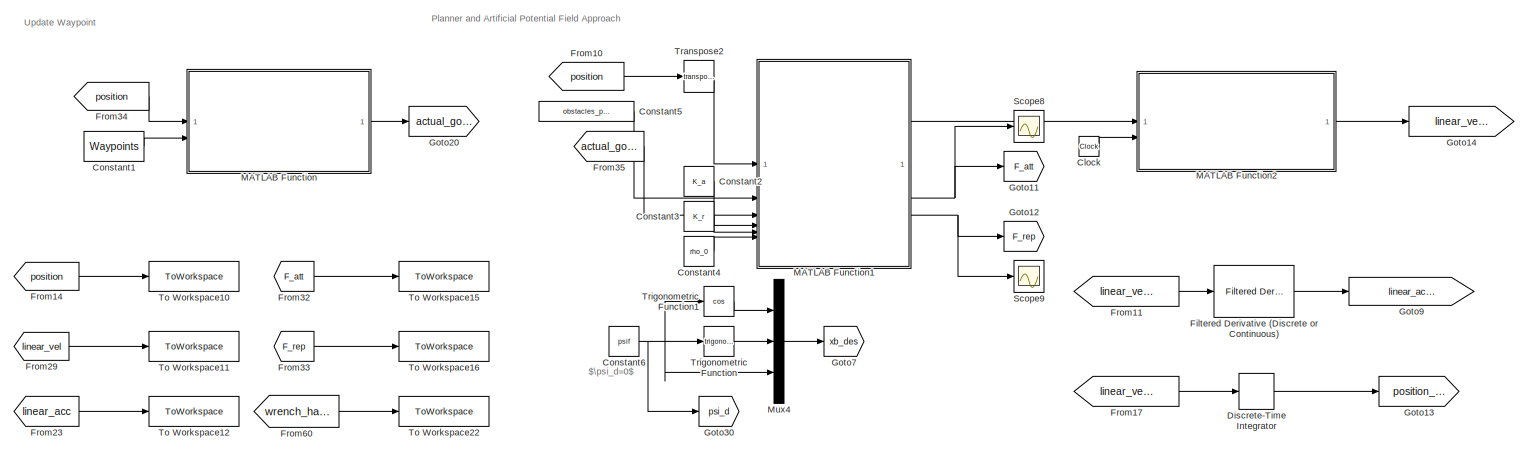
[diagram: root canvas - part 1/5, top right region]
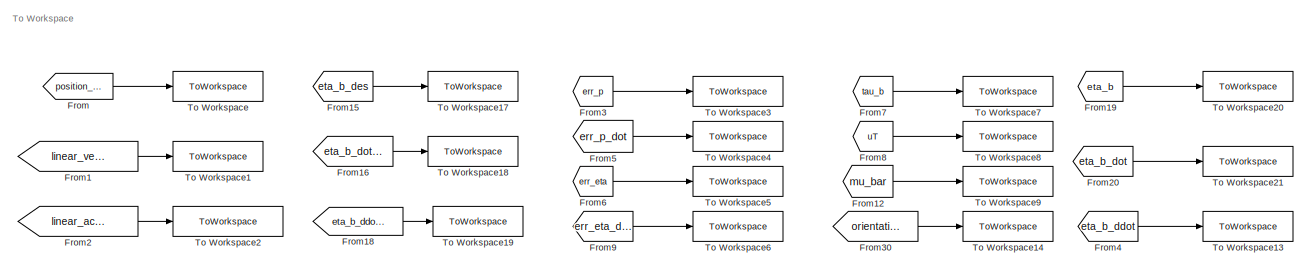
[diagram: root canvas - part 2/5, top left region]
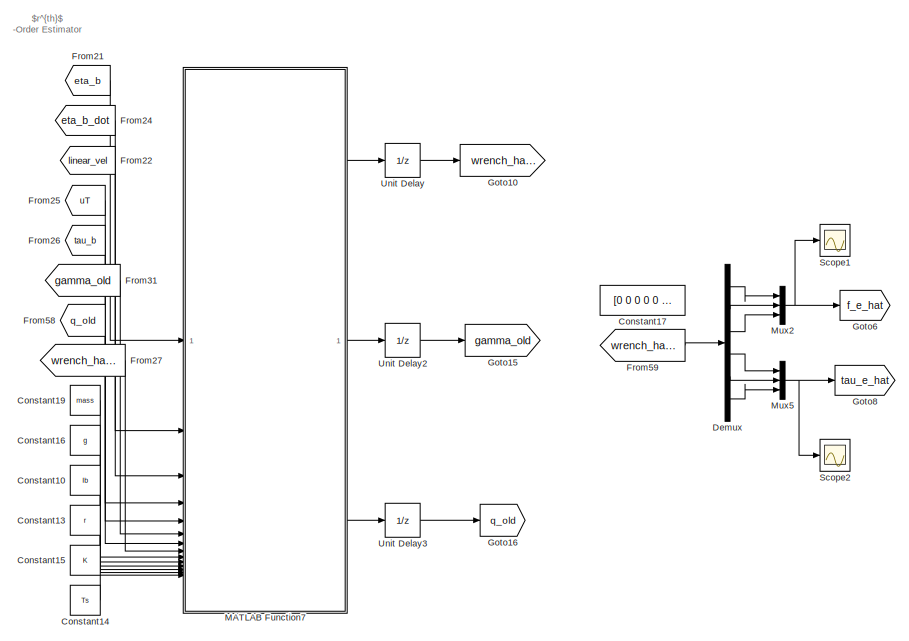
[diagram: root canvas - part 3/5, middle right region]
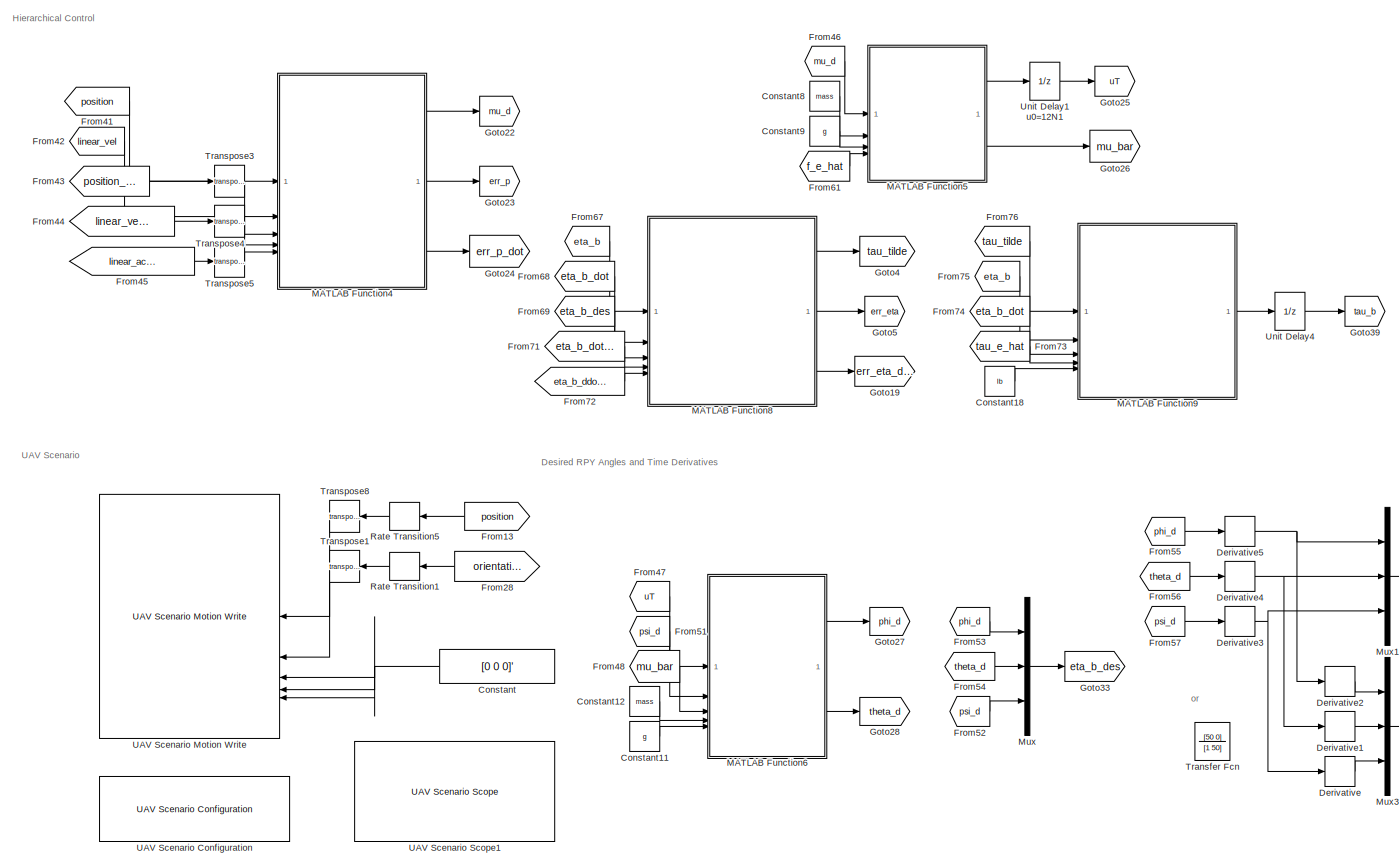
[diagram: root canvas - part 4/5, bottom left region]
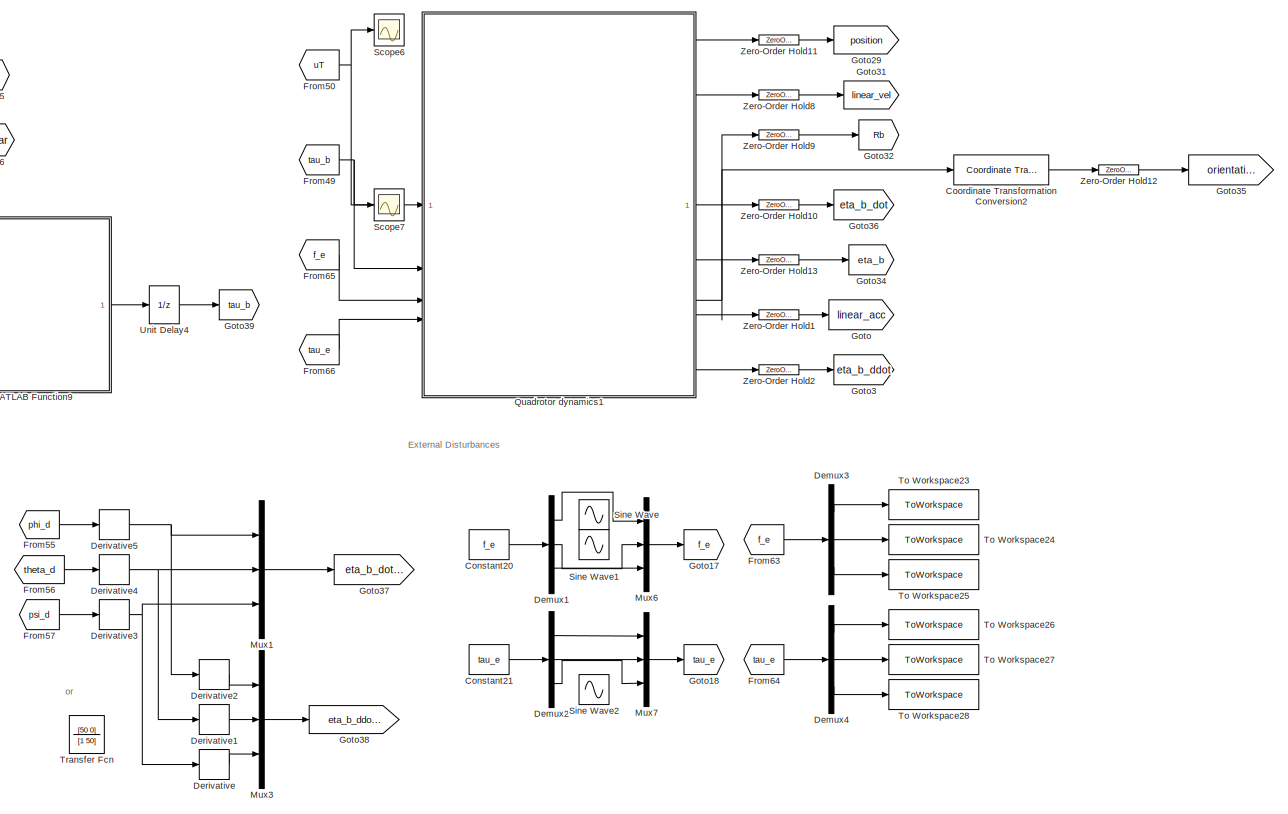
[diagram: root canvas - part 5/5, central region]
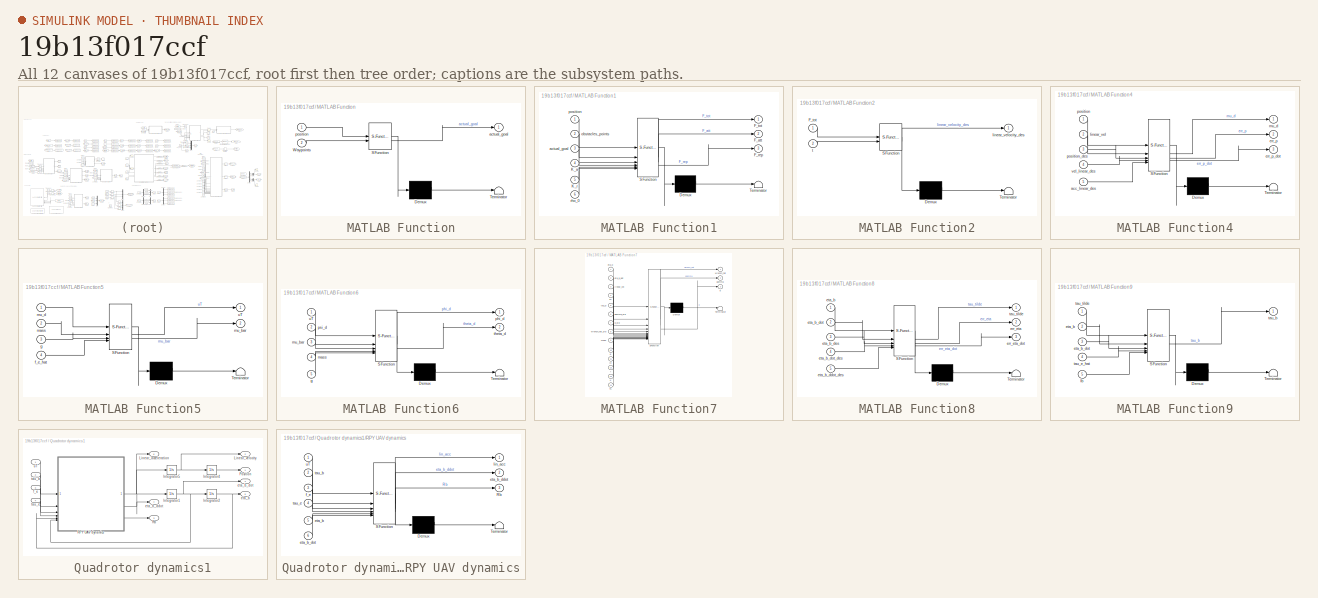
[diagram: thumbnail index - all 12 canvases of the model, root first then tree order]
MODEL slx_19b13f017ccf
KIND model
CONFIG AbsTol = auto
CONFIG EnableMultiTasking = off
CONFIG FixedStep = auto
CONFIG MaxStep = auto
CONFIG MinStep = auto
CONFIG RelTol = 1e-3
CONFIG SampleTimeConstraint = Unconstrained
CONFIG SolverName = VariableStepAuto
CONFIG StartTime = 0.0
CONFIG StopTime = 115
BLOCK [Clock] Clock
BLOCK [Constant] Constant
  NameLocation = top
  Value = [0 0 0]'
BLOCK [Constant] Constant1
  Value = Waypoints
BLOCK [Constant] Constant10
  Value = Ib
BLOCK [Constant] Constant11
  Value = g
BLOCK [Constant] Constant12
  Value = mass
BLOCK [Constant] Constant13
  Value = r
BLOCK [Constant] Constant14
  Value = Ts
BLOCK [Constant] Constant15
  Value = K
BLOCK [Constant] Constant16
  Value = g
BLOCK [Constant] Constant17
  Value = [0 0 0 0 0 0]
BLOCK [Constant] Constant18
  Value = Ib
BLOCK [Constant] Constant19
  Value = mass
BLOCK [Constant] Constant2
  Value = K_a
BLOCK [Constant] Constant20
  Value = f_e
BLOCK [Constant] Constant21
  Value = tau_e
BLOCK [Constant] Constant3
  Value = K_r
BLOCK [Constant] Constant4
  Value = rho_0
BLOCK [Constant] Constant5
  Value = obstacles_points
BLOCK [Constant] Constant6
  Value = psif
BLOCK [Constant] Constant8
  Value = mass
BLOCK [Constant] Constant9
  Value = g
BLOCK [Reference] Coordinate Transformation Conversion2  REF=robotcorelib/Coordinate Transformation Conversion
  SourceBlock = robotcorelib/Coordinate Transformation Conversion
  SourceType = robotics.slcore.internal.block.CoordinateTransformationConversion
BLOCK [Demux] Demux
  Outputs = 6
BLOCK [Demux] Demux1
  Outputs = 3
BLOCK [Demux] Demux2
  Outputs = 3
BLOCK [Demux] Demux3
  Outputs = 3
BLOCK [Demux] Demux4
  Outputs = 3
BLOCK [Derivative] Derivative
BLOCK [Derivative] Derivative1
BLOCK [Derivative] Derivative2
BLOCK [Derivative] Derivative3
BLOCK [Derivative] Derivative4
BLOCK [Derivative] Derivative5
BLOCK [DiscreteIntegrator] Discrete-Time Integrator
  ICPrevOutput = DiscIntNeverNeededParam
  ICPrevScaledInput = DiscIntNeverNeededParam
  InitialCondition = pos_0
  InitialConditionSetting = Auto
  SampleTime = Ts
BLOCK [Reference] Filtered Derivative (Discrete or Continuous)  REF=eeGeneralControl/Filtered Derivative
(Discrete or Continuous)
  LibrarySourceBlock = ee_sl_lib/General Control/Filtered Derivative\n(Discrete or Continuous)
  SourceBlock = eeGeneralControl/Filtered Derivative\n(Discrete or Continuous)
  SourceType = Filtered Derivative (Discrete or Continuous)
BLOCK [From] From
  GotoTag = position_des
BLOCK [From] From1
  GotoTag = linear_velocity_des
BLOCK [From] From10
  GotoTag = position
BLOCK [From] From11
  GotoTag = linear_velocity_des
BLOCK [From] From12
  GotoTag = mu_bar
BLOCK [From] From13
  GotoTag = position
  NameLocation = top
BLOCK [From] From14
  GotoTag = position
BLOCK [From] From15
  GotoTag = eta_b_des
BLOCK [From] From16
  GotoTag = eta_b_dot_des
BLOCK [From] From17
  GotoTag = linear_velocity_des
BLOCK [From] From18
  GotoTag = eta_b_ddot_des
BLOCK [From] From19
  GotoTag = eta_b
BLOCK [From] From2
  GotoTag = linear_acceleration_des
BLOCK [From] From20
  GotoTag = eta_b_dot
BLOCK [From] From21
  GotoTag = eta_b
BLOCK [From] From22
  GotoTag = linear_vel
BLOCK [From] From23
  GotoTag = linear_acc
BLOCK [From] From24
  GotoTag = eta_b_dot
BLOCK [From] From25
  GotoTag = uT
BLOCK [From] From26
  GotoTag = tau_b
BLOCK [From] From27
  GotoTag = wrench_hat_old
BLOCK [From] From28
  GotoTag = orientation_quat
  NameLocation = top
BLOCK [From] From29
  GotoTag = linear_vel
BLOCK [From] From3
  GotoTag = err_p
BLOCK [From] From30
  GotoTag = orientation_quat
BLOCK [From] From31
  GotoTag = gamma_old
BLOCK [From] From32
  GotoTag = F_att
BLOCK [From] From33
  GotoTag = F_rep
BLOCK [From] From34
  GotoTag = position
BLOCK [From] From35
  GotoTag = actual_goals
BLOCK [From] From4
  GotoTag = eta_b_ddot
BLOCK [From] From41
  GotoTag = position
BLOCK [From] From42
  GotoTag = linear_vel
BLOCK [From] From43
  GotoTag = position_des
BLOCK [From] From44
  GotoTag = linear_velocity_des
BLOCK [From] From45
  GotoTag = linear_acceleration_des
BLOCK [From] From46
  GotoTag = mu_d
BLOCK [From] From47
  GotoTag = uT
BLOCK [From] From48
  GotoTag = mu_bar
BLOCK [From] From49
  GotoTag = tau_b
BLOCK [From] From5
  GotoTag = err_p_dot
BLOCK [From] From50
  GotoTag = uT
BLOCK [From] From51
  GotoTag = psi_d
BLOCK [From] From52
  GotoTag = psi_d
BLOCK [From] From53
  GotoTag = phi_d
BLOCK [From] From54
  GotoTag = theta_d
BLOCK [From] From55
  GotoTag = phi_d
BLOCK [From] From56
  GotoTag = theta_d
BLOCK [From] From57
  GotoTag = psi_d
BLOCK [From] From58
  GotoTag = q_old
BLOCK [From] From59
  GotoTag = wrench_hat_old
BLOCK [From] From6
  GotoTag = err_eta
BLOCK [From] From60
  GotoTag = wrench_hat_old
BLOCK [From] From61
  GotoTag = f_e_hat
BLOCK [From] From63
  GotoTag = f_e
BLOCK [From] From64
  GotoTag = tau_e
BLOCK [From] From65
  GotoTag = f_e
BLOCK [From] From66
  GotoTag = tau_e
BLOCK [From] From67
  GotoTag = eta_b
BLOCK [From] From68
  GotoTag = eta_b_dot
BLOCK [From] From69
  GotoTag = eta_b_des
BLOCK [From] From7
  GotoTag = tau_b
BLOCK [From] From71
  GotoTag = eta_b_dot_des
BLOCK [From] From72
  GotoTag = eta_b_ddot_des
BLOCK [From] From73
  GotoTag = tau_e_hat
BLOCK [From] From74
  GotoTag = eta_b_dot
BLOCK [From] From75
  GotoTag = eta_b
BLOCK [From] From76
  GotoTag = tau_tilde
BLOCK [From] From8
  GotoTag = uT
BLOCK [From] From9
  GotoTag = err_eta_dot
BLOCK [Goto] Goto
  GotoTag = linear_acc
BLOCK [Goto] Goto10
  GotoTag = wrench_hat_old
BLOCK [Goto] Goto11
  GotoTag = F_att
BLOCK [Goto] Goto12
  GotoTag = F_rep
BLOCK [Goto] Goto13
  GotoTag = position_des
BLOCK [Goto] Goto14
  GotoTag = linear_velocity_des
BLOCK [Goto] Goto15
  GotoTag = gamma_old
BLOCK [Goto] Goto16
  GotoTag = q_old
BLOCK [Goto] Goto17
  GotoTag = f_e
BLOCK [Goto] Goto18
  GotoTag = tau_e
BLOCK [Goto] Goto19
  GotoTag = err_eta_dot
BLOCK [Goto] Goto20
  GotoTag = actual_goals
BLOCK [Goto] Goto22
  GotoTag = mu_d
BLOCK [Goto] Goto23
  GotoTag = err_p
BLOCK [Goto] Goto24
  GotoTag = err_p_dot
BLOCK [Goto] Goto25
  GotoTag = uT
BLOCK [Goto] Goto26
  GotoTag = mu_bar
BLOCK [Goto] Goto27
  GotoTag = phi_d
BLOCK [Goto] Goto28
  GotoTag = theta_d
BLOCK [Goto] Goto29
  GotoTag = position
BLOCK [Goto] Goto3
  GotoTag = eta_b_ddot
BLOCK [Goto] Goto30
  GotoTag = psi_d
BLOCK [Goto] Goto31
  GotoTag = linear_vel
BLOCK [Goto] Goto32
  GotoTag = Rb
BLOCK [Goto] Goto33
  GotoTag = eta_b_des
BLOCK [Goto] Goto34
  GotoTag = eta_b
BLOCK [Goto] Goto35
  GotoTag = orientation_quat
BLOCK [Goto] Goto36
  GotoTag = eta_b_dot
BLOCK [Goto] Goto37
  GotoTag = eta_b_dot_des
BLOCK [Goto] Goto38
  GotoTag = eta_b_ddot_des
BLOCK [Goto] Goto39
  GotoTag = tau_b
BLOCK [Goto] Goto4
  GotoTag = tau_tilde
BLOCK [Goto] Goto5
  GotoTag = err_eta
BLOCK [Goto] Goto6
  GotoTag = f_e_hat
BLOCK [Goto] Goto7
  Commented = on
  GotoTag = xb_des
BLOCK [Goto] Goto8
  GotoTag = tau_e_hat
BLOCK [Goto] Goto9
  GotoTag = linear_acceleration_des
BLOCK [SubSystem] MATLAB Function
  ErrorFcn = Stateflow.Translate.translate
  PermitHierarchicalResolution = ExplicitOnly
  SFBlockType = MATLAB Function
  TreatAsAtomicUnit = on
BLOCK [Demux] MATLAB Function/ Demux 
  Outputs = 1
BLOCK [S-Function] MATLAB Function/ SFunction 
  EnableBusSupport = off
  FunctionName = sf_sfun
  PortCounts = [2 2]
  SFcnIsStateOwnerBlock = off
  SFunctionDeploymentMode = off
  Tag = Stateflow S-Function 1
BLOCK [Terminator] MATLAB Function/ Terminator 
BLOCK [Inport] MATLAB Function/Waypoints
  Port = 2
BLOCK [Outport] MATLAB Function/actual_goal
BLOCK [Inport] MATLAB Function/position
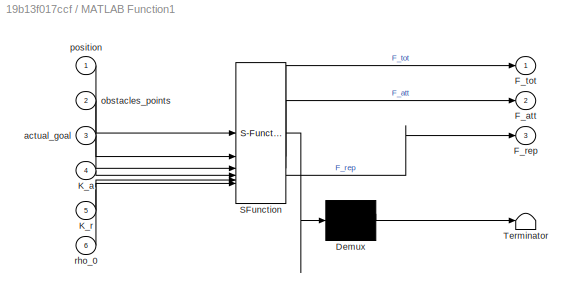
BLOCK [SubSystem] MATLAB Function1
  ErrorFcn = Stateflow.Translate.translate
  PermitHierarchicalResolution = ExplicitOnly
  SFBlockType = MATLAB Function
  TreatAsAtomicUnit = on
BLOCK [Demux] MATLAB Function1/ Demux 
  Outputs = 1
BLOCK [S-Function] MATLAB Function1/ SFunction 
  EnableBusSupport = off
  FunctionName = sf_sfun
  PortCounts = [6 4]
  SFcnIsStateOwnerBlock = off
  SFunctionDeploymentMode = off
  Tag = Stateflow S-Function 6
BLOCK [Terminator] MATLAB Function1/ Terminator 
BLOCK [Outport] MATLAB Function1/F_att
  Port = 2
BLOCK [Outport] MATLAB Function1/F_rep
  Port = 3
BLOCK [Outport] MATLAB Function1/F_tot
BLOCK [Inport] MATLAB Function1/K_a
  Port = 4
BLOCK [Inport] MATLAB Function1/K_r
  Port = 5
BLOCK [Inport] MATLAB Function1/actual_goal
  Port = 3
BLOCK [Inport] MATLAB Function1/obstacles_points
  Port = 2
BLOCK [Inport] MATLAB Function1/position
BLOCK [Inport] MATLAB Function1/rho_0
  Port = 6
BLOCK [SubSystem] MATLAB Function2
  ErrorFcn = Stateflow.Translate.translate
  PermitHierarchicalResolution = ExplicitOnly
  SFBlockType = MATLAB Function
  TreatAsAtomicUnit = on
BLOCK [Demux] MATLAB Function2/ Demux 
  Outputs = 1
BLOCK [S-Function] MATLAB Function2/ SFunction 
  EnableBusSupport = off
  FunctionName = sf_sfun
  PortCounts = [2 2]
  SFcnIsStateOwnerBlock = off
  SFunctionDeploymentMode = off
  Tag = Stateflow S-Function 7
BLOCK [Terminator] MATLAB Function2/ Terminator 
BLOCK [Inport] MATLAB Function2/F_tot
BLOCK [Outport] MATLAB Function2/linear_velocity_des
BLOCK [Inport] MATLAB Function2/t
  Port = 2
BLOCK [SubSystem] MATLAB Function4
  ErrorFcn = Stateflow.Translate.translate
  PermitHierarchicalResolution = ExplicitOnly
  SFBlockType = MATLAB Function
  TreatAsAtomicUnit = on
BLOCK [Demux] MATLAB Function4/ Demux 
  Outputs = 1
BLOCK [S-Function] MATLAB Function4/ SFunction 
  EnableBusSupport = off
  FunctionName = sf_sfun
  PortCounts = [5 4]
  SFcnIsStateOwnerBlock = off
  SFunctionDeploymentMode = off
  Tag = Stateflow S-Function 9
BLOCK [Terminator] MATLAB Function4/ Terminator 
BLOCK [Inport] MATLAB Function4/acc_linear_des
  Port = 5
BLOCK [Outport] MATLAB Function4/err_p
  Port = 2
BLOCK [Outport] MATLAB Function4/err_p_dot
  Port = 3
BLOCK [Inport] MATLAB Function4/linear_vel
  Port = 2
BLOCK [Outport] MATLAB Function4/mu_d
BLOCK [Inport] MATLAB Function4/position
BLOCK [Inport] MATLAB Function4/position_des
  Port = 3
BLOCK [Inport] MATLAB Function4/vel_linear_des
  Port = 4
BLOCK [SubSystem] MATLAB Function5
  ErrorFcn = Stateflow.Translate.translate
  PermitHierarchicalResolution = ExplicitOnly
  SFBlockType = MATLAB Function
  TreatAsAtomicUnit = on
BLOCK [Demux] MATLAB Function5/ Demux 
  Outputs = 1
BLOCK [S-Function] MATLAB Function5/ SFunction 
  EnableBusSupport = off
  FunctionName = sf_sfun
  PortCounts = [4 3]
  SFcnIsStateOwnerBlock = off
  SFunctionDeploymentMode = off
  Tag = Stateflow S-Function 10
BLOCK [Terminator] MATLAB Function5/ Terminator 
BLOCK [Inport] MATLAB Function5/f_e_hat
  Port = 4
BLOCK [Inport] MATLAB Function5/g
  Port = 3
BLOCK [Inport] MATLAB Function5/mass
  Port = 2
BLOCK [Outport] MATLAB Function5/mu_bar
  Port = 2
BLOCK [Inport] MATLAB Function5/mu_d
BLOCK [Outport] MATLAB Function5/uT
BLOCK [SubSystem] MATLAB Function6
  ErrorFcn = Stateflow.Translate.translate
  PermitHierarchicalResolution = ExplicitOnly
  SFBlockType = MATLAB Function
  TreatAsAtomicUnit = on
BLOCK [Demux] MATLAB Function6/ Demux 
  Outputs = 1
BLOCK [S-Function] MATLAB Function6/ SFunction 
  EnableBusSupport = off
  FunctionName = sf_sfun
  PortCounts = [5 3]
  SFcnIsStateOwnerBlock = off
  SFunctionDeploymentMode = off
  Tag = Stateflow S-Function 11
BLOCK [Terminator] MATLAB Function6/ Terminator 
BLOCK [Inport] MATLAB Function6/g
  Port = 5
BLOCK [Inport] MATLAB Function6/mass
  Port = 4
BLOCK [Inport] MATLAB Function6/mu_bar
  Port = 3
BLOCK [Outport] MATLAB Function6/phi_d
BLOCK [Inport] MATLAB Function6/psi_d
  Port = 2
BLOCK [Outport] MATLAB Function6/theta_d
  Port = 2
BLOCK [Inport] MATLAB Function6/uT
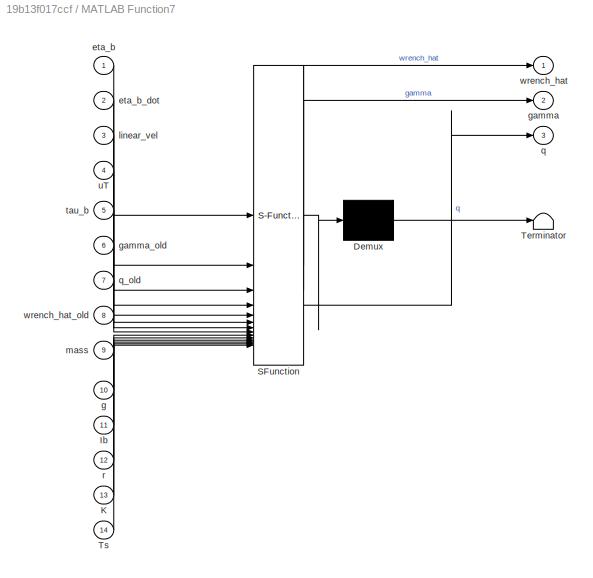
BLOCK [SubSystem] MATLAB Function7
  ErrorFcn = Stateflow.Translate.translate
  PermitHierarchicalResolution = ExplicitOnly
  SFBlockType = MATLAB Function
  TreatAsAtomicUnit = on
BLOCK [Demux] MATLAB Function7/ Demux 
  Outputs = 1
BLOCK [S-Function] MATLAB Function7/ SFunction 
  EnableBusSupport = off
  FunctionName = sf_sfun
  PortCounts = [14 4]
  SFcnIsStateOwnerBlock = off
  SFunctionDeploymentMode = off
  Tag = Stateflow S-Function 2
BLOCK [Terminator] MATLAB Function7/ Terminator 
BLOCK [Inport] MATLAB Function7/Ib
  Port = 11
BLOCK [Inport] MATLAB Function7/K
  Port = 13
BLOCK [Inport] MATLAB Function7/Ts
  Port = 14
BLOCK [Inport] MATLAB Function7/eta_b
BLOCK [Inport] MATLAB Function7/eta_b_dot
  Port = 2
BLOCK [Inport] MATLAB Function7/g
  Port = 10
BLOCK [Outport] MATLAB Function7/gamma
  Port = 2
BLOCK [Inport] MATLAB Function7/gamma_old
  Port = 6
BLOCK [Inport] MATLAB Function7/linear_vel
  Port = 3
BLOCK [Inport] MATLAB Function7/mass
  Port = 9
BLOCK [Outport] MATLAB Function7/q
  Port = 3
BLOCK [Inport] MATLAB Function7/q_old
  Port = 7
BLOCK [Inport] MATLAB Function7/r
  Port = 12
BLOCK [Inport] MATLAB Function7/tau_b
  Port = 5
BLOCK [Inport] MATLAB Function7/uT
  Port = 4
BLOCK [Outport] MATLAB Function7/wrench_hat
BLOCK [Inport] MATLAB Function7/wrench_hat_old
  Port = 8
BLOCK [SubSystem] MATLAB Function8
  ErrorFcn = Stateflow.Translate.translate
  PermitHierarchicalResolution = ExplicitOnly
  SFBlockType = MATLAB Function
  TreatAsAtomicUnit = on
BLOCK [Demux] MATLAB Function8/ Demux 
  Outputs = 1
BLOCK [S-Function] MATLAB Function8/ SFunction 
  EnableBusSupport = off
  FunctionName = sf_sfun
  PortCounts = [5 4]
  SFcnIsStateOwnerBlock = off
  SFunctionDeploymentMode = off
  Tag = Stateflow S-Function 3
BLOCK [Terminator] MATLAB Function8/ Terminator 
BLOCK [Outport] MATLAB Function8/err_eta
  Port = 2
BLOCK [Outport] MATLAB Function8/err_eta_dot
  Port = 3
BLOCK [Inport] MATLAB Function8/eta_b
BLOCK [Inport] MATLAB Function8/eta_b_ddot_des
  Port = 5
BLOCK [Inport] MATLAB Function8/eta_b_des
  Port = 3
BLOCK [Inport] MATLAB Function8/eta_b_dot
  Port = 2
BLOCK [Inport] MATLAB Function8/eta_b_dot_des
  Port = 4
BLOCK [Outport] MATLAB Function8/tau_tilde
BLOCK [SubSystem] MATLAB Function9
  ErrorFcn = Stateflow.Translate.translate
  PermitHierarchicalResolution = ExplicitOnly
  SFBlockType = MATLAB Function
  TreatAsAtomicUnit = on
BLOCK [Demux] MATLAB Function9/ Demux 
  Outputs = 1
BLOCK [S-Function] MATLAB Function9/ SFunction 
  EnableBusSupport = off
  FunctionName = sf_sfun
  PortCounts = [5 2]
  SFcnIsStateOwnerBlock = off
  SFunctionDeploymentMode = off
  Tag = Stateflow S-Function 4
BLOCK [Terminator] MATLAB Function9/ Terminator 
BLOCK [Inport] MATLAB Function9/Ib
  Port = 5
BLOCK [Inport] MATLAB Function9/eta_b
  Port = 2
BLOCK [Inport] MATLAB Function9/eta_b_dot
  Port = 3
BLOCK [Outport] MATLAB Function9/tau_b
BLOCK [Inport] MATLAB Function9/tau_e_hat
  Port = 4
BLOCK [Inport] MATLAB Function9/tau_tilde
BLOCK [Mux] Mux
  DisplayOption = bar
  Inputs = 3
BLOCK [Mux] Mux1
  DisplayOption = bar
  Inputs = 3
BLOCK [Mux] Mux2
  DisplayOption = bar
  Inputs = 3
BLOCK [Mux] Mux3
  DisplayOption = bar
  Inputs = 3
BLOCK [Mux] Mux4
  Commented = on
  DisplayOption = bar
  Inputs = 3
BLOCK [Mux] Mux5
  DisplayOption = bar
  Inputs = 3
BLOCK [Mux] Mux6
  DisplayOption = bar
  Inputs = 3
BLOCK [Mux] Mux7
  DisplayOption = bar
  Inputs = 3
BLOCK [SubSystem] Quadrotor dynamics1
BLOCK [Integrator] Quadrotor dynamics1/Integrator1
  InitialCondition = eta_b_dot_0
BLOCK [Integrator] Quadrotor dynamics1/Integrator2
  InitialCondition = eta_b_0
BLOCK [Integrator] Quadrotor dynamics1/Integrator4
  InitialCondition = pos_0
BLOCK [Integrator] Quadrotor dynamics1/Integrator5
  InitialCondition = lin_vel_0
BLOCK [Outport] Quadrotor dynamics1/Linear_acceleration
  Port = 6
BLOCK [Outport] Quadrotor dynamics1/Linear_velocity
  Port = 2
BLOCK [Outport] Quadrotor dynamics1/Position
BLOCK [SubSystem] Quadrotor dynamics1/RPY UAV dynamics
  ErrorFcn = Stateflow.Translate.translate
  PermitHierarchicalResolution = ExplicitOnly
  SFBlockType = MATLAB Function
  TreatAsAtomicUnit = on
BLOCK [Demux] Quadrotor dynamics1/RPY UAV dynamics/ Demux 
  Outputs = 1
BLOCK [S-Function] Quadrotor dynamics1/RPY UAV dynamics/ SFunction 
  EnableBusSupport = off
  FunctionName = sf_sfun
  Parameters = Ib,mass
  PortCounts = [6 4]
  SFcnIsStateOwnerBlock = off
  SFunctionDeploymentMode = off
  Tag = Stateflow S-Function 13
BLOCK [Terminator] Quadrotor dynamics1/RPY UAV dynamics/ Terminator 
BLOCK [Outport] Quadrotor dynamics1/RPY UAV dynamics/Rb
  Port = 3
BLOCK [Inport] Quadrotor dynamics1/RPY UAV dynamics/eta_b
  Port = 5
BLOCK [Outport] Quadrotor dynamics1/RPY UAV dynamics/eta_b_ddot
  Port = 2
BLOCK [Inport] Quadrotor dynamics1/RPY UAV dynamics/eta_b_dot
  Port = 6
BLOCK [Inport] Quadrotor dynamics1/RPY UAV dynamics/f_e
  Port = 3
BLOCK [Outport] Quadrotor dynamics1/RPY UAV dynamics/lin_acc
BLOCK [Inport] Quadrotor dynamics1/RPY UAV dynamics/tau_b
  Port = 2
BLOCK [Inport] Quadrotor dynamics1/RPY UAV dynamics/tau_e
  Port = 4
BLOCK [Inport] Quadrotor dynamics1/RPY UAV dynamics/uT
BLOCK [Outport] Quadrotor dynamics1/Rb
  Port = 3
BLOCK [Outport] Quadrotor dynamics1/eta_b
  Port = 5
BLOCK [Outport] Quadrotor dynamics1/eta_b_ddot
  Port = 7
BLOCK [Outport] Quadrotor dynamics1/eta_b_dot
  Port = 4
BLOCK [Inport] Quadrotor dynamics1/f_e
  Port = 3
BLOCK [Inport] Quadrotor dynamics1/tau_b
  Port = 2
BLOCK [Inport] Quadrotor dynamics1/tau_e
  Port = 4
BLOCK [Inport] Quadrotor dynamics1/uT
BLOCK [RateTransition] Rate Transition1
  OutPortSampleTime = Ts
BLOCK [RateTransition] Rate Transition5
  OutPortSampleTime = Ts
BLOCK [Scope] Scope1
  ActiveDisplayYMaximum = 1
  ActiveDisplayYMinimum = -1
  Floating = off
  GraphicalSettings = {"Style":{"BackgroundColor":[0.12941176470588237,0.12941176470588237,0.12941176470588237],"AxesColor":[0.07058823529411765,0.07058823529411765,0.07058823529411765],"LabelsColor":[0.8509803921568627,0.8509803921568627,0.8509803921568627],"PreserveColors":false,"Visible":[true,true,true],"LineStyle":["-","-","-"],"LineWidth":[1.5,1.5,1.5],"BarWidth":[0.9,0.9,0.9],"LineColor":["auto","auto","auto"],"...<+2095ch>
  MultipleDisplayCache = [{"MaxYLimMag":1,"MaxYLimReal":1,"MinYLimMag":0,"MinYLimReal":-1,"PlotAsMagnitudePhase":false,"ShowGrid":true,"ShowLegend":false,"Title":"%<SignalLabel>","YLabel":""}]
  NumInputPorts = 1
  ScopeFrameLocation = window
  WasSavedAsWebScope = on
  WindowPosition = [0.000000,36.000000,1536.000000,793.000000,]
BLOCK [Scope] Scope2
  ActiveDisplayYMaximum = 1.6732320406118144
  ActiveDisplayYMinimum = -2.2549630226203039
  DataLoggingVariableName = ScopeData1
  Floating = off
  GraphicalSettings = {"Style":{"BackgroundColor":[0.12941176470588237,0.12941176470588237,0.12941176470588237],"AxesColor":[0.07058823529411765,0.07058823529411765,0.07058823529411765],"LabelsColor":[0.8509803921568627,0.8509803921568627,0.8509803921568627],"PreserveColors":false,"Visible":[true,true,true],"LineStyle":["-","-","-"],"LineWidth":[1.5,1.5,1.5],"BarWidth":[0.9,0.9,0.9],"LineColor":["auto","auto","auto"],"...<+2194ch>
  MultipleDisplayCache = [{"MaxYLimMag":2.2549630226203039,"MaxYLimReal":1.6732320406118144,"MinYLimMag":0,"MinYLimReal":-2.2549630226203039,"PlotAsMagnitudePhase":false,"ShowGrid":true,"ShowLegend":false,"Title":"%<SignalLabel>","YLabel":""}]
  NumInputPorts = 1
  ScopeFrameLocation = window
  WasSavedAsWebScope = on
  WindowPosition = [1921.000000,49.000000,1920.000000,1009.000000,]
BLOCK [Scope] Scope6
  ActiveDisplayYMaximum = 12.03695
  ActiveDisplayYMinimum = 11.66748
  DataLoggingVariableName = ScopeData2
  Floating = off
  GraphicalSettings = {"GraphicalSettings":{"LegacySettings":true,"Style":{"Style":{"AxesColor":"[0 0 0]","ChannelNames":[""],"ColorOrder":"[1 1 0.0666666666666667;0.0745098039215686 0.623529411764706 1;1 0.411764705882353 0.16078431372549;0.392156862745098 0.831372549019608 0.0745098039215686;0.717647058823529 0.274509803921569 1;0.0588235294117647 1 1;1 0.0745098039215686 0.650980392156863]","CurrentConfiguration":"e...<+375ch>
  MultipleDisplayCache = [{"MaxYLimMag":12.03695,"MaxYLimReal":12.03695,"MinYLimMag":11.66748,"MinYLimReal":11.66748,"PlotAsMagnitudePhase":false,"ShowGrid":true,"ShowLegend":false,"Title":"%<SignalLabel>","YLabel":""}]
  NumInputPorts = 1
  WasSavedAsWebScope = on
BLOCK [Scope] Scope7
  ActiveDisplayYMaximum = 0.02035
  ActiveDisplayYMinimum = -0.02035
  DataLoggingVariableName = ScopeData7
  Floating = off
  GraphicalSettings = {"GraphicalSettings":{"LegacySettings":true,"Style":{"AxesScalingProperties":{"ScaleAxesLimitsAtStop":false},"Style":{"AxesColor":"[0 0 0]","ChannelNames":[""],"ColorOrder":"[1 1 0.0666666666666667;0.0745098039215686 0.623529411764706 1;1 0.411764705882353 0.16078431372549;0.392156862745098 0.831372549019608 0.0745098039215686;0.717647058823529 0.274509803921569 1;0.0588235294117647 1 1;1 0.074509...<+463ch>
  MultipleDisplayCache = [{"MaxYLimMag":0.02035,"MaxYLimReal":0.02035,"MinYLimMag":0,"MinYLimReal":-0.02035,"PlotAsMagnitudePhase":false,"ShowGrid":true,"ShowLegend":false,"Title":"%<SignalLabel>","YLabel":""}]
  NumInputPorts = 1
  WasSavedAsWebScope = on
BLOCK [Scope] Scope8
  ActiveDisplayYMaximum = 10.433654100091561
  ActiveDisplayYMinimum = -10.489441161556352
  DataLoggingVariableName = ScopeData8
  Floating = off
  GraphicalSettings = {"Style":{"BackgroundColor":[0.12941176470588237,0.12941176470588237,0.12941176470588237],"AxesColor":[0.07058823529411765,0.07058823529411765,0.07058823529411765],"LabelsColor":[0.8509803921568627,0.8509803921568627,0.8509803921568627],"PreserveColors":false,"Visible":[true,true,true],"LineStyle":["-","-","-"],"LineWidth":[1.5,1.5,1.5],"BarWidth":[0.9,0.9,0.9],"LineColor":["auto","auto","auto"],"...<+2224ch>
  MultipleDisplayCache = [{"MaxYLimMag":10,"MaxYLimReal":10.433654100091561,"MinYLimMag":0,"MinYLimReal":-10.489441161556352,"PlotAsMagnitudePhase":false,"ShowGrid":true,"ShowLegend":false,"Title":"%<SignalLabel>","YLabel":""}]
  NumInputPorts = 1
  ScopeFrameLocation = window
  WasSavedAsWebScope = on
  WindowPosition = [2185.000000,199.000000,558.000000,419.000000,]
BLOCK [Scope] Scope9
  ActiveDisplayYMaximum = 1
  ActiveDisplayYMinimum = -1
  DataLoggingVariableName = ScopeData9
  Floating = off
  GraphicalSettings = {"Style":{"BackgroundColor":[0.12941176470588237,0.12941176470588237,0.12941176470588237],"AxesColor":[0.07058823529411765,0.07058823529411765,0.07058823529411765],"LabelsColor":[0.8509803921568627,0.8509803921568627,0.8509803921568627],"PreserveColors":false,"Visible":[true,true,true],"LineStyle":["-","-","-"],"LineWidth":[1.5,1.5,1.5],"BarWidth":[0.9,0.9,0.9],"LineColor":["auto","auto","auto"],"...<+2260ch>
  MultipleDisplayCache = [{"MaxYLimMag":1,"MaxYLimReal":1,"MinYLimMag":0,"MinYLimReal":-1,"PlotAsMagnitudePhase":false,"ShowGrid":true,"ShowLegend":false,"Title":"%<SignalLabel>","YLabel":""}]
  NumInputPorts = 1
  ScopeFrameLocation = window
  WasSavedAsWebScope = on
  WindowPosition = [1921.000000,49.000000,1920.000000,1009.000000,]
BLOCK [Sin] Sine Wave
  Amplitude = Dxy
  Frequency = 0.5
  SampleTime = Ts
BLOCK [Sin] Sine Wave1
  Amplitude = Dxy
  Frequency = 0.2
  Phase = pi
  SampleTime = Ts
BLOCK [Sin] Sine Wave2
  Amplitude = Dyaw
  Frequency = 0.1
  SampleTime = Ts
BLOCK [ToWorkspace] To Workspace
  FixptAsFi = on
  MaxDataPoints = inf
  SampleTime = -1
  SaveFormat = Timeseries
  VariableName = position_des
BLOCK [ToWorkspace] To Workspace1
  FixptAsFi = on
  MaxDataPoints = inf
  SampleTime = -1
  SaveFormat = Timeseries
  VariableName = linear_velocity_des
BLOCK [ToWorkspace] To Workspace10
  FixptAsFi = on
  MaxDataPoints = inf
  SampleTime = -1
  SaveFormat = Timeseries
  VariableName = position
BLOCK [ToWorkspace] To Workspace11
  FixptAsFi = on
  MaxDataPoints = inf
  SampleTime = -1
  SaveFormat = Timeseries
  VariableName = linear_vel
BLOCK [ToWorkspace] To Workspace12
  FixptAsFi = on
  MaxDataPoints = inf
  SampleTime = -1
  SaveFormat = Timeseries
  VariableName = linear_acc
BLOCK [ToWorkspace] To Workspace13
  FixptAsFi = on
  MaxDataPoints = inf
  SampleTime = -1
  SaveFormat = Timeseries
  VariableName = eta_b_ddot
BLOCK [ToWorkspace] To Workspace14
  FixptAsFi = on
  MaxDataPoints = inf
  SampleTime = -1
  SaveFormat = Timeseries
  VariableName = orientation_quat
BLOCK [ToWorkspace] To Workspace15
  FixptAsFi = on
  MaxDataPoints = inf
  SampleTime = -1
  SaveFormat = Timeseries
  VariableName = F_att
BLOCK [ToWorkspace] To Workspace16
  FixptAsFi = on
  MaxDataPoints = inf
  SampleTime = -1
  SaveFormat = Timeseries
  VariableName = F_rep
BLOCK [ToWorkspace] To Workspace17
  FixptAsFi = on
  MaxDataPoints = inf
  SampleTime = -1
  SaveFormat = Timeseries
  VariableName = eta_b_des
BLOCK [ToWorkspace] To Workspace18
  FixptAsFi = on
  MaxDataPoints = inf
  SampleTime = -1
  SaveFormat = Timeseries
  VariableName = eta_b_dot_des
BLOCK [ToWorkspace] To Workspace19
  FixptAsFi = on
  MaxDataPoints = inf
  SampleTime = -1
  SaveFormat = Timeseries
  VariableName = eta_b_ddot_des
BLOCK [ToWorkspace] To Workspace2
  FixptAsFi = on
  MaxDataPoints = inf
  SampleTime = -1
  SaveFormat = Timeseries
  VariableName = linear_acceleration_des
BLOCK [ToWorkspace] To Workspace20
  FixptAsFi = on
  MaxDataPoints = inf
  SampleTime = -1
  SaveFormat = Timeseries
  VariableName = eta_b
BLOCK [ToWorkspace] To Workspace21
  FixptAsFi = on
  MaxDataPoints = inf
  SampleTime = -1
  SaveFormat = Timeseries
  VariableName = eta_b_dot
BLOCK [ToWorkspace] To Workspace22
  FixptAsFi = on
  MaxDataPoints = inf
  SampleTime = -1
  SaveFormat = Timeseries
  VariableName = wrench_hat
BLOCK [ToWorkspace] To Workspace23
  FixptAsFi = on
  MaxDataPoints = inf
  SampleTime = -1
  SaveFormat = Timeseries
  VariableName = Dx
BLOCK [ToWorkspace] To Workspace24
  FixptAsFi = on
  MaxDataPoints = inf
  SampleTime = -1
  SaveFormat = Timeseries
  VariableName = Dy
BLOCK [ToWorkspace] To Workspace25
  FixptAsFi = on
  MaxDataPoints = inf
  SampleTime = -1
  SaveFormat = Timeseries
  VariableName = Dz
BLOCK [ToWorkspace] To Workspace26
  FixptAsFi = on
  MaxDataPoints = inf
  SampleTime = -1
  SaveFormat = Timeseries
  VariableName = Droll
BLOCK [ToWorkspace] To Workspace27
  FixptAsFi = on
  MaxDataPoints = inf
  SampleTime = -1
  SaveFormat = Timeseries
  VariableName = Dpitch
BLOCK [ToWorkspace] To Workspace28
  FixptAsFi = on
  MaxDataPoints = inf
  SampleTime = -1
  SaveFormat = Timeseries
  VariableName = Dyaw
BLOCK [ToWorkspace] To Workspace3
  FixptAsFi = on
  MaxDataPoints = inf
  SampleTime = -1
  SaveFormat = Timeseries
  VariableName = err_p
BLOCK [ToWorkspace] To Workspace4
  FixptAsFi = on
  MaxDataPoints = inf
  SampleTime = -1
  SaveFormat = Timeseries
  VariableName = err_p_dot
BLOCK [ToWorkspace] To Workspace5
  FixptAsFi = on
  MaxDataPoints = inf
  SampleTime = -1
  SaveFormat = Timeseries
  VariableName = err_eta
BLOCK [ToWorkspace] To Workspace6
  FixptAsFi = on
  MaxDataPoints = inf
  SampleTime = -1
  SaveFormat = Timeseries
  VariableName = err_eta_dot
BLOCK [ToWorkspace] To Workspace7
  FixptAsFi = on
  MaxDataPoints = inf
  SampleTime = -1
  SaveFormat = Timeseries
  VariableName = tau_b
BLOCK [ToWorkspace] To Workspace8
  FixptAsFi = on
  MaxDataPoints = inf
  SampleTime = -1
  SaveFormat = Timeseries
  VariableName = uT
BLOCK [ToWorkspace] To Workspace9
  FixptAsFi = on
  MaxDataPoints = inf
  SampleTime = -1
  SaveFormat = Timeseries
  VariableName = mu_bar
BLOCK [TransferFcn] Transfer Fcn
  Commented = on
  Denominator = [1 50]
  Numerator = [50 0]
BLOCK [Math] Transpose1
  NameLocation = top
  Operator = transpose
BLOCK [Math] Transpose2
  Operator = transpose
BLOCK [Math] Transpose3
  Operator = transpose
BLOCK [Math] Transpose4
  Operator = transpose
BLOCK [Math] Transpose5
  Operator = transpose
BLOCK [Math] Transpose8
  NameLocation = top
  Operator = transpose
BLOCK [Trigonometry] Trigonometric Function
  Commented = on
BLOCK [Trigonometry] Trigonometric Function1
  Commented = on
  Operator = cos
BLOCK [Reference] UAV Scenario Configuration  REF=uavsimlib/UAV Scenario Configuration
  Priority = -1
  SourceBlock = uavsimlib/UAV Scenario Configuration
  SourceType = UAV Scenario Configuration
BLOCK [Reference] UAV Scenario Motion Write  REF=uavsimlib/UAV Scenario Motion Write
  Priority = 0
  SourceBlock = uavsimlib/UAV Scenario Motion Write
  SourceType = UAV Scenario Motion Write
BLOCK [Reference] UAV Scenario Scope1  REF=uavsimlib/UAV Scenario Scope
  Priority = 1
  SourceBlock = uavsimlib/UAV Scenario Scope
  SourceType = UAV Scenario Scope
BLOCK [UnitDelay] Unit Delay
  HasFrameUpgradeWarning = on
  InitialCondition = zeros(6,1)
  SampleTime = Ts
BLOCK [UnitDelay] Unit Delay1 u0=12N1
  InitialCondition = 12
  SampleTime = Ts
BLOCK [UnitDelay] Unit Delay2
  HasFrameUpgradeWarning = on
  InitialCondition = zeros(6,r)
  SampleTime = Ts
BLOCK [UnitDelay] Unit Delay3
  HasFrameUpgradeWarning = on
  InitialCondition = zeros(6,1)
  SampleTime = Ts
BLOCK [UnitDelay] Unit Delay4
  InitialCondition = [0 0 0]'
  SampleTime = Ts
BLOCK [ZeroOrderHold] Zero-Order Hold1
  SampleTime = Ts
BLOCK [ZeroOrderHold] Zero-Order Hold10
  SampleTime = Ts
BLOCK [ZeroOrderHold] Zero-Order Hold11
  SampleTime = Ts
BLOCK [ZeroOrderHold] Zero-Order Hold12
  SampleTime = Ts
BLOCK [ZeroOrderHold] Zero-Order Hold13
  SampleTime = Ts
BLOCK [ZeroOrderHold] Zero-Order Hold2
  SampleTime = Ts
BLOCK [ZeroOrderHold] Zero-Order Hold8
  SampleTime = Ts
BLOCK [ZeroOrderHold] Zero-Order Hold9
  SampleTime = Ts
ANNOTATION (root): External Disturbances
ANNOTATION (root): Desired RPY Angles and Time Derivatives
ANNOTATION (root): Hierarchical Control
ANNOTATION (root): Planner and Artificial Potential Field Approach
ANNOTATION (root): To Workspace
ANNOTATION (root): UAV Scenario
ANNOTATION (root): Update Waypoint
ANNOTATION (root): $\psi_d=0$
ANNOTATION (root): $r^{th}$ -Order Estimator
ANNOTATION (root): or
LINE Clock:1 -> MATLAB Function2:2
LINE Constant10:1 -> MATLAB Function7:11
LINE Constant11:1 -> MATLAB Function6:5
LINE Constant12:1 -> MATLAB Function6:4
LINE Constant13:1 -> MATLAB Function7:12
LINE Constant14:1 -> MATLAB Function7:14
LINE Constant15:1 -> MATLAB Function7:13
LINE Constant16:1 -> MATLAB Function7:10
LINE Constant18:1 -> MATLAB Function9:5
LINE Constant19:1 -> MATLAB Function7:9
LINE Constant1:1 -> MATLAB Function:2
LINE Constant20:1 -> Demux1:1
LINE Constant21:1 -> Demux2:1
LINE Constant2:1 -> MATLAB Function1:4
LINE Constant3:1 -> MATLAB Function1:5
LINE Constant4:1 -> MATLAB Function1:6
LINE Constant5:1 -> MATLAB Function1:2
NET Constant6:1 -> Goto30:1, Mux4:3, Trigonometric Function1:1, Trigonometric Function:1
LINE Constant8:1 -> MATLAB Function5:2
LINE Constant9:1 -> MATLAB Function5:3
NET Constant:1 -> UAV Scenario Motion Write:3, UAV Scenario Motion Write:4, UAV Scenario Motion Write:5
LINE Coordinate Transformation Conversion2:1 -> Zero-Order Hold12:1
LINE Demux1:1 -> Mux6:1
LINE Demux1:2 -> Mux6:2
LINE Demux1:3 -> Mux6:3
LINE Demux2:1 -> Mux7:1
LINE Demux2:2 -> Mux7:2
LINE Demux2:3 -> Mux7:3
LINE Demux3:1 -> To Workspace23:1
LINE Demux3:2 -> To Workspace24:1
LINE Demux3:3 -> To Workspace25:1
LINE Demux4:1 -> To Workspace26:1
LINE Demux4:2 -> To Workspace27:1
LINE Demux4:3 -> To Workspace28:1
LINE Demux:1 -> Mux2:1
LINE Demux:2 -> Mux2:2
LINE Demux:3 -> Mux2:3
LINE Demux:4 -> Mux5:1
LINE Demux:5 -> Mux5:2
LINE Demux:6 -> Mux5:3
LINE Derivative1:1 -> Mux3:2
LINE Derivative2:1 -> Mux3:1
NET Derivative3:1 -> Derivative:1, Mux1:3
NET Derivative4:1 -> Derivative1:1, Mux1:2
NET Derivative5:1 -> Derivative2:1, Mux1:1
LINE Derivative:1 -> Mux3:3
LINE Discrete-Time Integrator:1 -> Goto13:1
LINE Filtered Derivative (Discrete or Continuous):1 -> Goto9:1
LINE From10:1 -> Transpose2:1
LINE From11:1 -> Filtered Derivative (Discrete or Continuous):1
LINE From12:1 -> To Workspace9:1
LINE From13:1 -> Rate Transition5:1
LINE From14:1 -> To Workspace10:1
LINE From15:1 -> To Workspace17:1
LINE From16:1 -> To Workspace18:1
LINE From17:1 -> Discrete-Time Integrator:1
LINE From18:1 -> To Workspace19:1
LINE From19:1 -> To Workspace20:1
LINE From1:1 -> To Workspace1:1
LINE From20:1 -> To Workspace21:1
LINE From21:1 -> MATLAB Function7:1
LINE From22:1 -> MATLAB Function7:3
LINE From23:1 -> To Workspace12:1
LINE From24:1 -> MATLAB Function7:2
LINE From25:1 -> MATLAB Function7:4
LINE From26:1 -> MATLAB Function7:5
LINE From27:1 -> MATLAB Function7:8
LINE From28:1 -> Rate Transition1:1
LINE From29:1 -> To Workspace11:1
LINE From2:1 -> To Workspace2:1
LINE From30:1 -> To Workspace14:1
LINE From31:1 -> MATLAB Function7:6
LINE From32:1 -> To Workspace15:1
LINE From33:1 -> To Workspace16:1
LINE From34:1 -> MATLAB Function:1
LINE From35:1 -> MATLAB Function1:3
LINE From3:1 -> To Workspace3:1
LINE From41:1 -> MATLAB Function4:1
LINE From42:1 -> MATLAB Function4:2
LINE From43:1 -> Transpose3:1
LINE From44:1 -> Transpose4:1
LINE From45:1 -> Transpose5:1
LINE From46:1 -> MATLAB Function5:1
LINE From47:1 -> MATLAB Function6:1
LINE From48:1 -> MATLAB Function6:3
NET From49:1 -> Quadrotor dynamics1:2, Scope7:1
LINE From4:1 -> To Workspace13:1
NET From50:1 -> Quadrotor dynamics1:1, Scope6:1
LINE From51:1 -> MATLAB Function6:2
LINE From52:1 -> Mux:3
LINE From53:1 -> Mux:1
LINE From54:1 -> Mux:2
LINE From55:1 -> Derivative5:1
LINE From56:1 -> Derivative4:1
LINE From57:1 -> Derivative3:1
LINE From58:1 -> MATLAB Function7:7
LINE From59:1 -> Demux:1
LINE From5:1 -> To Workspace4:1
LINE From60:1 -> To Workspace22:1
LINE From61:1 -> MATLAB Function5:4
LINE From63:1 -> Demux3:1
LINE From64:1 -> Demux4:1
LINE From65:1 -> Quadrotor dynamics1:3
LINE From66:1 -> Quadrotor dynamics1:4
LINE From67:1 -> MATLAB Function8:1
LINE From68:1 -> MATLAB Function8:2
LINE From69:1 -> MATLAB Function8:3
LINE From6:1 -> To Workspace5:1
LINE From71:1 -> MATLAB Function8:4
LINE From72:1 -> MATLAB Function8:5
LINE From73:1 -> MATLAB Function9:4
LINE From74:1 -> MATLAB Function9:3
LINE From75:1 -> MATLAB Function9:2
LINE From76:1 -> MATLAB Function9:1
LINE From7:1 -> To Workspace7:1
LINE From8:1 -> To Workspace8:1
LINE From9:1 -> To Workspace6:1
LINE From:1 -> To Workspace:1
LINE MATLAB Function1:1 -> MATLAB Function2:1
NET MATLAB Function1:2 -> Goto11:1, Scope8:1
NET MATLAB Function1:3 -> Goto12:1, Scope9:1
LINE MATLAB Function2:1 -> Goto14:1
LINE MATLAB Function4:1 -> Goto22:1
LINE MATLAB Function4:2 -> Goto23:1
LINE MATLAB Function4:3 -> Goto24:1
LINE MATLAB Function5:1 -> Unit Delay1 u0=12N1:1
LINE MATLAB Function5:2 -> Goto26:1
LINE MATLAB Function6:1 -> Goto27:1
LINE MATLAB Function6:2 -> Goto28:1
LINE MATLAB Function7:1 -> Unit Delay:1
LINE MATLAB Function7:2 -> Unit Delay2:1
LINE MATLAB Function7:3 -> Unit Delay3:1
LINE MATLAB Function8:1 -> Goto4:1
LINE MATLAB Function8:2 -> Goto5:1
LINE MATLAB Function8:3 -> Goto19:1
LINE MATLAB Function9:1 -> Unit Delay4:1
LINE MATLAB Function:1 -> Goto20:1
LINE Mux1:1 -> Goto37:1
NET Mux2:1 -> Goto6:1, Scope1:1
LINE Mux3:1 -> Goto38:1
LINE Mux4:1 -> Goto7:1
NET Mux5:1 -> Goto8:1, Scope2:1
LINE Mux6:1 -> Goto17:1
LINE Mux7:1 -> Goto18:1
LINE Mux:1 -> Goto33:1
NET Quadrotor dynamics1/Integrator1:1 -> Quadrotor dynamics1/Integrator2:1, Quadrotor dynamics1/RPY UAV dynamics:6, Quadrotor dynamics1/eta_b_dot:1
NET Quadrotor dynamics1/Integrator2:1 -> Quadrotor dynamics1/RPY UAV dynamics:5, Quadrotor dynamics1/eta_b:1
LINE Quadrotor dynamics1/Integrator4:1 -> Quadrotor dynamics1/Position:1
NET Quadrotor dynamics1/Integrator5:1 -> Quadrotor dynamics1/Integrator4:1, Quadrotor dynamics1/Linear_velocity:1
NET Quadrotor dynamics1/RPY UAV dynamics:1 -> Quadrotor dynamics1/Integrator5:1, Quadrotor dynamics1/Linear_acceleration:1
NET Quadrotor dynamics1/RPY UAV dynamics:2 -> Quadrotor dynamics1/Integrator1:1, Quadrotor dynamics1/eta_b_ddot:1
LINE Quadrotor dynamics1/RPY UAV dynamics:3 -> Quadrotor dynamics1/Rb:1
LINE Quadrotor dynamics1/f_e:1 -> Quadrotor dynamics1/RPY UAV dynamics:3
LINE Quadrotor dynamics1/tau_b:1 -> Quadrotor dynamics1/RPY UAV dynamics:2
LINE Quadrotor dynamics1/tau_e:1 -> Quadrotor dynamics1/RPY UAV dynamics:4
LINE Quadrotor dynamics1/uT:1 -> Quadrotor dynamics1/RPY UAV dynamics:1
LINE Quadrotor dynamics1:1 -> Zero-Order Hold11:1
LINE Quadrotor dynamics1:2 -> Zero-Order Hold8:1
NET Quadrotor dynamics1:3 -> Coordinate Transformation Conversion2:1, Zero-Order Hold9:1
LINE Quadrotor dynamics1:4 -> Zero-Order Hold10:1
LINE Quadrotor dynamics1:5 -> Zero-Order Hold13:1
LINE Quadrotor dynamics1:6 -> Zero-Order Hold1:1
LINE Quadrotor dynamics1:7 -> Zero-Order Hold2:1
LINE Rate Transition1:1 -> Transpose1:1
LINE Rate Transition5:1 -> Transpose8:1
LINE Transpose1:1 -> UAV Scenario Motion Write:2
LINE Transpose2:1 -> MATLAB Function1:1
LINE Transpose3:1 -> MATLAB Function4:3
LINE Transpose4:1 -> MATLAB Function4:4
LINE Transpose5:1 -> MATLAB Function4:5
LINE Transpose8:1 -> UAV Scenario Motion Write:1
LINE Trigonometric Function1:1 -> Mux4:1
LINE Trigonometric Function:1 -> Mux4:2
LINE Unit Delay1 u0=12N1:1 -> Goto25:1
LINE Unit Delay2:1 -> Goto15:1
LINE Unit Delay3:1 -> Goto16:1
LINE Unit Delay4:1 -> Goto39:1
LINE Unit Delay:1 -> Goto10:1
LINE Zero-Order Hold10:1 -> Goto36:1
LINE Zero-Order Hold11:1 -> Goto29:1
LINE Zero-Order Hold12:1 -> Goto35:1
LINE Zero-Order Hold13:1 -> Goto34:1
LINE Zero-Order Hold1:1 -> Goto:1
LINE Zero-Order Hold2:1 -> Goto3:1
LINE Zero-Order Hold8:1 -> Goto31:1
LINE Zero-Order Hold9:1 -> Goto32:1
note: NET lines group one-source signal fan-out (src -> all destinations, sorted); 1:1 wires keep LINE
CHART MATLAB Function5 states=1 transitions=1
  STATE_LABEL 'eML_blk_kernel()'
  STATE_LABEL 'SCRIPT:\nfunction [uT, mu_bar] = ThrustComputation(mu_d, mass, g, f_e_hat)\n\n%% mu_d Components\n% Without Estimator mu_bar = mu_d\nmu_bar = mu_d - 1/mass*f_e_hat;\n\nmu_bar_x = mu_bar(1);\nmu_bar_y = mu_bar(2);\nmu_bar_z = mu_bar(3);\n\nuT = mass*sqrt(mu_bar_x^2 + mu_bar_y^2 + (mu_bar_z - g)^2);\n'
CHART MATLAB Function6 states=1 transitions=1
  STATE_LABEL 'eML_blk_kernel()'
  STATE_LABEL 'SCRIPT:\nfunction [phi_d, theta_d] = AttitudeComputation(uT, psi_d, mu_bar, mass, g)\n\n%% mu_bar Components\nmu_bar_x = mu_bar(1);\nmu_bar_y = mu_bar(2);\nmu_bar_z = mu_bar(3);\n\n%% Desired Roll and Pitch Angles (the Yaw Angle is given by the Planner)\nphi_d = asin((mass/uT)*(mu_bar_y*cos(psi_d) - mu_bar_x*sin(psi_d)));\ntheta_d = atan((mu_bar_x*cos(psi_d) + mu_bar_y*sin(psi_d))/(mu_bar_z - g));\n\n'
CHART Quadrotor dynamics1/RPY UAV dynamics states=1 transitions=1
  STATE_LABEL 'eML_blk_kernel()'
  STATE_LABEL 'SCRIPT:\nfunction [lin_acc, eta_b_ddot, Rb] = RPYQuadrotorDynamicModel(uT, tau_b, f_e, tau_e, eta_b, eta_b_dot, mass, Ib)\n\n%% RPY Angles and Time Derivatives\nphi = eta_b(1);\ntheta = eta_b(2);\npsi = eta_b(3);\n\nphi_dot = eta_b_dot(1);\ntheta_dot = eta_b_dot(2);\npsi_dot = eta_b_dot(3);\n\n%% Matrices Computation\nQ = [1 0 -sin(theta);\n    0 cos(phi) cos(theta)*cos(phi);\n    0 -sin(phi) cos(theta)*cos(phi)...<+813ch>'
CHART MATLAB Function states=1 transitions=1
  STATE_LABEL 'eML_blk_kernel()'
  STATE_LABEL "SCRIPT:\nfunction actual_goal = UpdateWaypoint(position, Waypoints)\n\n    persistent idx wp_toll num_wp\n\n    if isempty(idx)\n        idx = 1;\n        wp_toll = 0.05; % Tolerance Distance\n        num_wp = size(Waypoints, 1);\n    end\n\n    actual_goal = Waypoints(idx, :);\n\n    % Distance from Current Goal\n    dist = norm(position' - actual_goal);\n\n    % Advance to Next Waypoint if close enough\n    if d...<+106ch>"
CHART MATLAB Function7 states=1 transitions=1
  STATE_LABEL 'eML_blk_kernel()'
  STATE_LABEL 'SCRIPT:\nfunction [wrench_hat, gamma, q] = Estimator(eta_b, eta_b_dot, linear_vel, uT, tau_b, gamma_old, q_old, wrench_hat_old, mass, g, Ib, r, K, Ts)\n\n    % Estimator considering the Generalised Momentum Vector q\n    \n    %% RPY Angles and Time Derivatives\n    phi = eta_b(1);\n    theta = eta_b(2);\n    psi = eta_b(3);\n    \n    phi_dot = eta_b_dot(1);\n    theta_dot = eta_b_dot(2);\n    psi_dot = eta_...<+1462ch>'
CHART MATLAB Function8 states=1 transitions=1
  STATE_LABEL 'eML_blk_kernel()'
  STATE_LABEL 'SCRIPT:\nfunction [tau_tilde, err_eta, err_eta_dot] = AngularPD(eta_b, eta_b_dot, eta_b_des, eta_b_dot_des, eta_b_ddot_des)\n\nerr_eta = eta_b - eta_b_des;\nerr_eta_dot = eta_b_dot - eta_b_dot_des;\n\nK_E=[15*eye(3) 15*eye(3)];\n\n\ntau_tilde = -K_E*[err_eta; err_eta_dot] + eta_b_ddot_des;\n\n'
CHART MATLAB Function9 states=1 transitions=1
  STATE_LABEL 'eML_blk_kernel()'
  STATE_LABEL 'SCRIPT:\nfunction tau_b  = FeedbackLin(tau_tilde, eta_b, eta_b_dot, tau_e_hat, Ib)\n\nphi = eta_b(1);\ntheta = eta_b(2);\npsi = eta_b(3);\n\nphi_dot = eta_b_dot(1);\ntheta_dot = eta_b_dot(2);\npsi_dot = eta_b_dot(3);\n\n%% Parameters\n\n%% Matrices Computation\nQ = [1 0 -sin(theta);\n    0 cos(phi) cos(theta)*cos(phi);\n    0 -sin(phi) cos(theta)*cos(phi)];\n\nS = skew(Q*eta_b_dot);\n\nQ_dot = [0 0 -cos(theta)*eta_b_...<+535ch>'
CHART MATLAB Function1 states=1 transitions=1
  STATE_LABEL 'eML_blk_kernel()'
  STATE_LABEL 'SCRIPT:\nfunction [F_tot, F_att, F_rep] = ForceComputation(position, obstacles_points, actual_goal, K_a, K_r, rho_0)\n% Computes the Total Force (Attractive + Repulsive) for APF (Artificial Potential Field Algorithm)\n%\n% Inputs:\n%   position         - 1x3 UAV Current Position [x, y, z]\n%   obstacles_points - 3xN Matrix: each Column is an Obstacle Point [x; y; z] (Different Frame)\n%   actual_goal    ...<+1442ch>'
CHART MATLAB Function2 states=1 transitions=1
  STATE_LABEL 'eML_blk_kernel()'
  STATE_LABEL 'SCRIPT:\nfunction linear_velocity_des = FilteredVelocity(F_tot, t)\n%   This Function apply an Exponential Moving Average Filter to input Total Force Vector\n%   It returns the filtered Velocity Vector based on the Input Force Vector F_tot\n%   and the Current Time t (for alpha).\n%\n%   Inputs:\n%       F_tot - 1x3 Vector, Total Force Input (from APF Algorithm)\n%       t     - Scalar, Current Time (seco...<+1634ch>'
CHART MATLAB Function4 states=1 transitions=1
  STATE_LABEL 'eML_blk_kernel()'
  STATE_LABEL 'SCRIPT:\nfunction [mu_d, err_p, err_p_dot] = PositionPD(position, linear_vel, position_des, vel_linear_des, acc_linear_des)\n\n%% Errors\nerr_p = position - position_des;\nerr_p_dot = linear_vel-vel_linear_des;\n\n%% Gains\nK_P = [10*eye(3) 0.7*eye(3)];\n\n%% Input\nmu_d = -K_P*[err_p; err_p_dot] + acc_linear_des;\n\nend\n'
CHART  states=0 transitions=0
CHART  states=0 transitions=0
CHART  states=0 transitions=0
CHART  states=0 transitions=0
CHART  states=0 transitions=0
CHART  states=0 transitions=0
CHART  states=0 transitions=0
CHART  states=0 transitions=0
CHART  states=0 transitions=0
CHART  states=0 transitions=0
